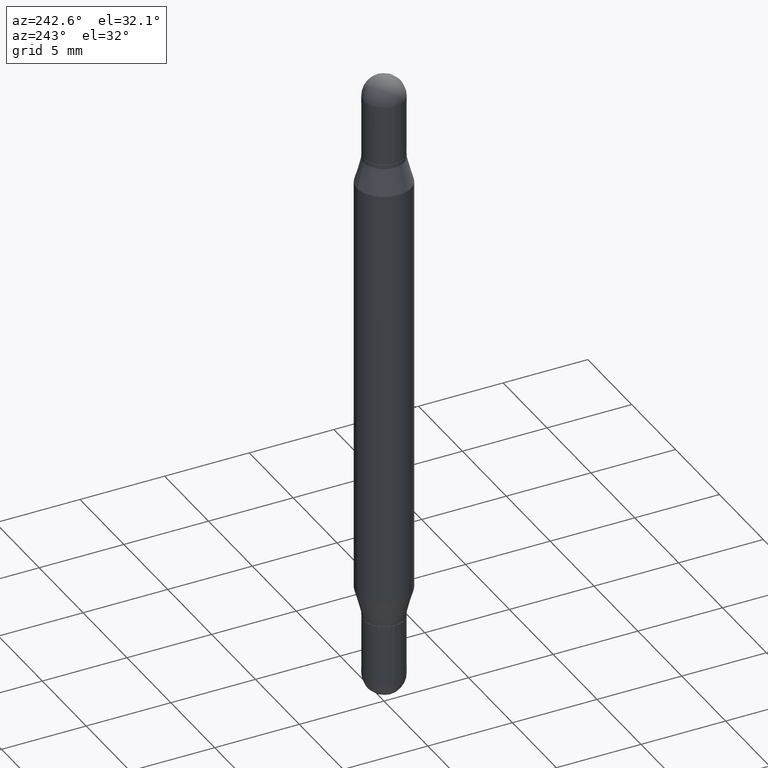
[diagram: clean part render]
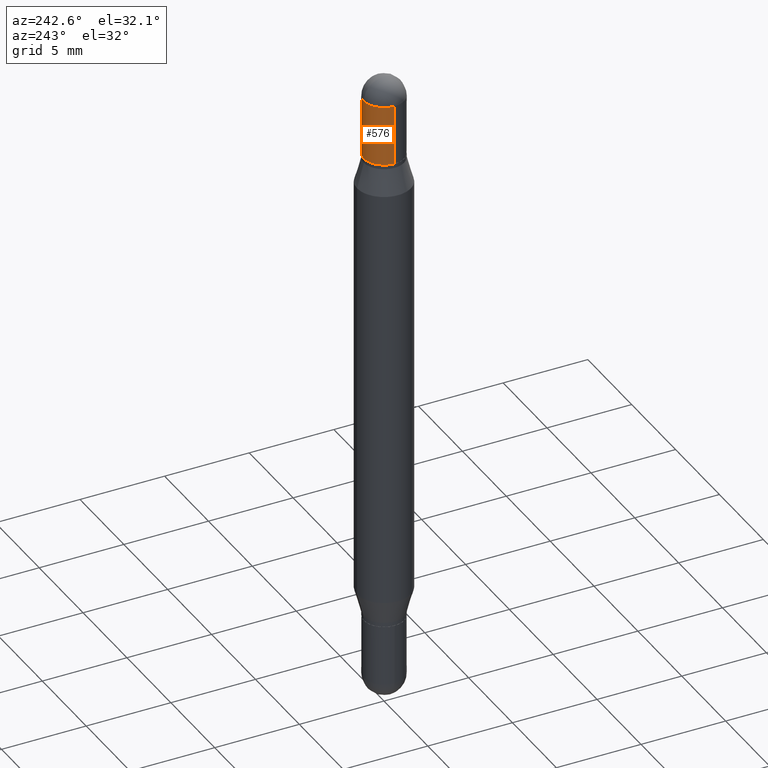
[diagram: same view with one face highlighted and labeled with its STEP entity id]
A machine part, auxiliary view. The second image highlights one B-rep face of the part: STEP entity #576.
In plain terms, the highlighted cylindrical surface (edge-blend (fillet) strip) has radius 1.1913 mm, axis along (-0, -0, -1).
Its self-contained STEP definition (entity closure, byte-faithful):
#13 = ORIENTED_EDGE ( 'NONE', *, *, #1102, .F. ) ;
#23 = EDGE_CURVE ( 'NONE', #1095, #525, #683, .T. ) ;
#30 = DIRECTION ( 'NONE',  ( 1.000000000000000000, -6.982962677686266711E-15, 0.000000000000000000 ) ) ;
#58 = AXIS2_PLACEMENT_3D ( 'NONE', #260, #597, #509 ) ;
#62 = AXIS2_PLACEMENT_3D ( 'NONE', #523, #345, #30 ) ;
#96 = DIRECTION ( 'NONE',  ( -2.445468806185136597E-29, -3.479614466977828254E-15, -1.000000000000000000 ) ) ;
#107 = CIRCLE ( 'NONE', #62, 0.04689999999999999725 ) ;
#161 = CARTESIAN_POINT ( 'NONE',  ( -0.04689999999999999725, -9.408370971656158891E-17, -0.1870000000000002216 ) ) ;
#204 = ORIENTED_EDGE ( 'NONE', *, *, #615, .T. ) ;
#227 = LINE ( 'NONE', #842, #829 ) ;
#244 = CARTESIAN_POINT ( 'NONE',  ( -0.04689999999999999725, -4.906564498270247118E-15, -1.500000000000000444 ) ) ;
#260 = CARTESIAN_POINT ( 'NONE',  ( 3.553510722267622201E-29, -1.720940724002502970E-16, -0.04690000000000053154 ) ) ;
#283 = AXIS2_PLACEMENT_3D ( 'NONE', #572, #96, #926 ) ;
#284 = VERTEX_POINT ( 'NONE', #1015 ) ;
#305 = EDGE_CURVE ( 'NONE', #1095, #284, #227, .T. ) ;
#345 = DIRECTION ( 'NONE',  ( 2.445468806185136597E-29, 3.479614466977828254E-15, 1.000000000000000000 ) ) ;
#406 = EDGE_CURVE ( 'NONE', #525, #951, #868, .T. ) ;
#451 = ORIENTED_EDGE ( 'NONE', *, *, #406, .F. ) ;
#477 = LINE ( 'NONE', #244, #849 ) ;
#505 = VERTEX_POINT ( 'NONE', #161 ) ;
#509 = DIRECTION ( 'NONE',  ( 1.000000000000000000, -6.982962677686266711E-15, 0.000000000000000000 ) ) ;
#523 = CARTESIAN_POINT ( 'NONE',  ( 3.210900542521084585E-29, -6.595880592238425060E-16, -0.1870000000000002216 ) ) ;
#525 = VERTEX_POINT ( 'NONE', #1005 ) ;
#532 = EDGE_LOOP ( 'NONE', ( #13, #451, #961, #935, #204 ) ) ;
#572 = CARTESIAN_POINT ( 'NONE',  ( 0.000000000000000000, -5.228321854365732350E-15, -1.500000000000000444 ) ) ;
#576 = ADVANCED_FACE ( 'NONE', ( #587 ), #1023, .T. ) ;
#587 = FACE_OUTER_BOUND ( 'NONE', #532, .T. ) ;
#597 = DIRECTION ( 'NONE',  ( 2.445468806185136597E-29, 3.479614466977828254E-15, 1.000000000000000000 ) ) ;
#615 = EDGE_CURVE ( 'NONE', #284, #505, #107, .T. ) ;
#636 = DIRECTION ( 'NONE',  ( 2.445468806185136597E-29, 3.479614466977828254E-15, 1.000000000000000000 ) ) ;
#652 = DIRECTION ( 'NONE',  ( 1.000000000000000000, -6.982962677686266711E-15, 0.000000000000000000 ) ) ;
#669 = AXIS2_PLACEMENT_3D ( 'NONE', #899, #636, #652 ) ;
#683 = CIRCLE ( 'NONE', #58, 0.04689999999999999725 ) ;
#726 = CARTESIAN_POINT ( 'NONE',  ( -0.04689999999999999725, -9.408370971656128076E-17, -0.04690000000000053154 ) ) ;
#829 = VECTOR ( 'NONE', #1010, 39.37007874015748143 ) ;
#842 = CARTESIAN_POINT ( 'NONE',  ( 0.04689999999999999725, -5.555822803949218252E-15, -1.500000000000000444 ) ) ;
#849 = VECTOR ( 'NONE', #1097, 39.37007874015748143 ) ;
#868 = CIRCLE ( 'NONE', #669, 0.04689999999999999725 ) ;
#899 = CARTESIAN_POINT ( 'NONE',  ( 3.553510722267622201E-29, -1.720940724002502970E-16, -0.04690000000000053154 ) ) ;
#926 = DIRECTION ( 'NONE',  ( 1.000000000000000000, -6.982962677686277755E-15, 0.000000000000000000 ) ) ;
#935 = ORIENTED_EDGE ( 'NONE', *, *, #305, .T. ) ;
#951 = VERTEX_POINT ( 'NONE', #726 ) ;
#961 = ORIENTED_EDGE ( 'NONE', *, *, #23, .F. ) ;
#1005 = CARTESIAN_POINT ( 'NONE',  ( 3.217573560955207797E-16, 0.04689999999999990010, -0.04690000000000069114 ) ) ;
#1010 = DIRECTION ( 'NONE',  ( -2.445468806185136877E-29, -3.479614466977828648E-15, -1.000000000000000000 ) ) ;
#1015 = CARTESIAN_POINT ( 'NONE',  ( 0.04689999999999999725, -9.870890088073285070E-16, -0.1870000000000002216 ) ) ;
#1019 = CARTESIAN_POINT ( 'NONE',  ( 0.04689999999999999725, -7.433420153955320943E-16, -0.04690000000000053154 ) ) ;
#1023 = CYLINDRICAL_SURFACE ( 'NONE', #283, 0.04689999999999999725 ) ;
#1095 = VERTEX_POINT ( 'NONE', #1019 ) ;
#1097 = DIRECTION ( 'NONE',  ( -2.445468806185136877E-29, -3.479614466977828648E-15, -1.000000000000000000 ) ) ;
#1102 = EDGE_CURVE ( 'NONE', #951, #505, #477, .T. ) ;